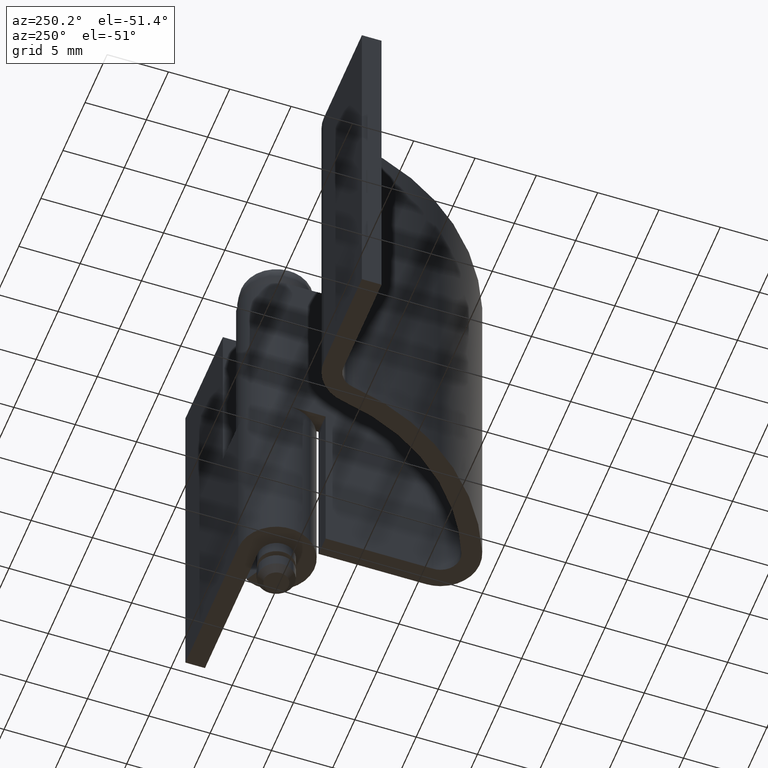
[diagram: clean part render]
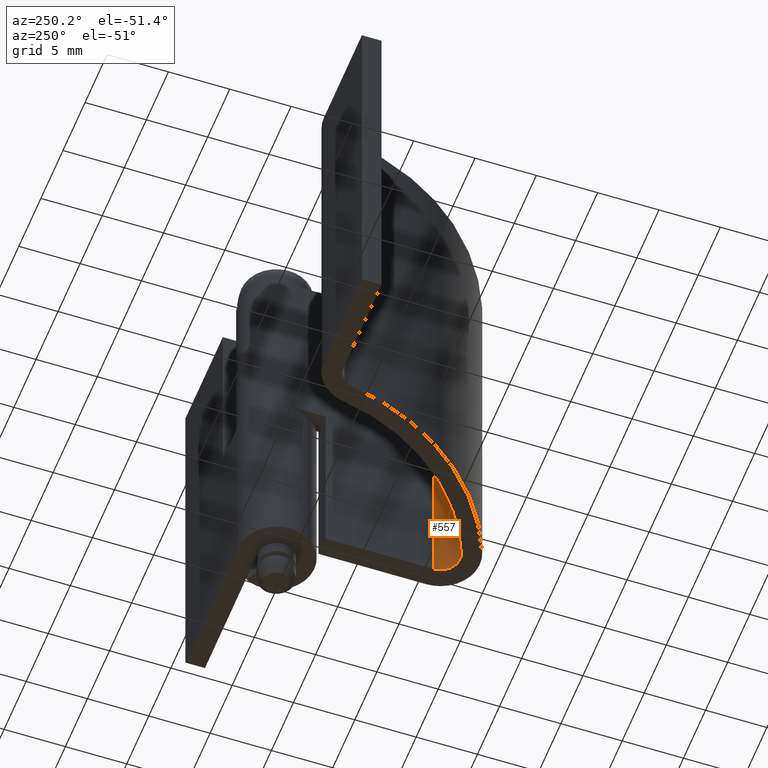
[diagram: same view with one face highlighted and labeled with its STEP entity id]
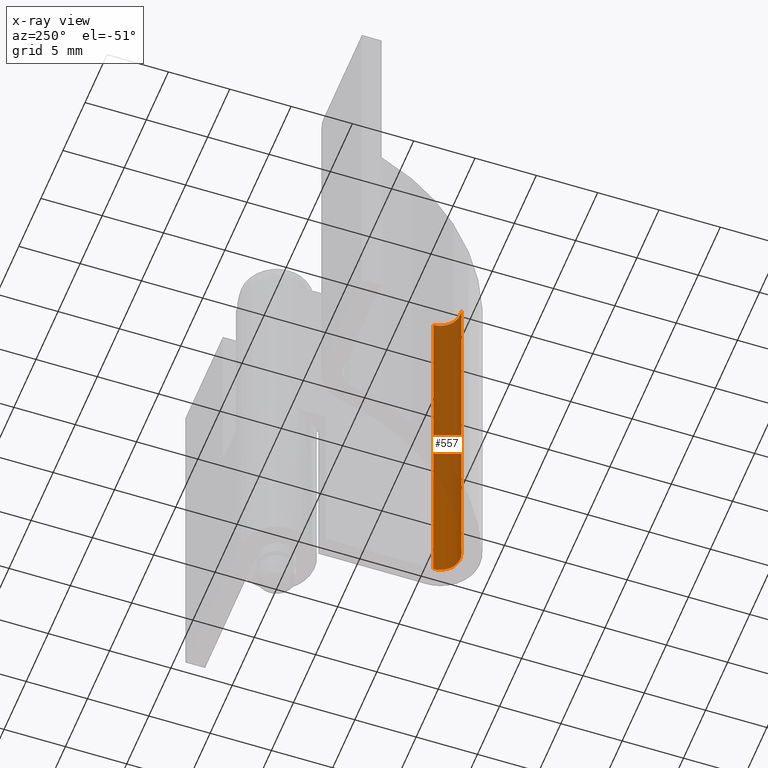
[diagram: x-ray of the same camera — body ghosted, the highlighted face saturated]
A machine part, auxiliary view. The second image highlights one B-rep face of the part: STEP entity #557.
The next image is the same camera in x-ray: the body ghosted, the highlighted face saturated — about 72% of this face is hidden behind the body in this view.
In plain terms, the highlighted face is a freeform B-spline surface patch.
Its self-contained STEP definition (entity closure, byte-faithful):
#253=CARTESIAN_POINT('',(-5.304818019828041,-13.181281369806520,3.0));
#254=VERTEX_POINT('',#253);
#268=CARTESIAN_POINT('',(-3.099998000000000,-11.700001000000000,3.0));
#269=VERTEX_POINT('',#268);
#270=CARTESIAN_POINT('',(-5.304818019828041,-13.181281369806520,3.0));
#271=CARTESIAN_POINT('',(-4.515460057916721,-13.503583889661240,3.000000000000000));
#272=CARTESIAN_POINT('',(-3.807728939454707,-13.028103712843560,3.0));
#273=CARTESIAN_POINT('',(-3.099997820992694,-12.552623536025877,3.000000000000000));
#274=CARTESIAN_POINT('',(-3.099998000000000,-11.700001000000000,3.0));
#282=(BOUNDED_CURVE()B_SPLINE_CURVE(2,(#270,#271,#272,#273,#274),.UNSPECIFIED.,.F.,.U.)B_SPLINE_CURVE_WITH_KNOTS((3,2,3),(0.0,0.500000000000000,1.0),.UNSPECIFIED.)CURVE()GEOMETRIC_REPRESENTATION_ITEM()RATIONAL_B_SPLINE_CURVE((1.0,0.882515679843935,1.0,0.882515679843935,1.0))REPRESENTATION_ITEM(''));
#283=EDGE_CURVE('',#254,#269,#282,.T.);
#424=CARTESIAN_POINT('',(-3.099998000000000,-11.700001000000000,33.000008000000037));
#425=VERTEX_POINT('',#424);
#431=CARTESIAN_POINT('',(-5.304818019828041,-13.181281369806520,33.000008000000037));
#432=VERTEX_POINT('',#431);
#433=CARTESIAN_POINT('',(-5.304818019828041,-13.181281369806520,33.000008000000037));
#434=CARTESIAN_POINT('',(-4.515460057916721,-13.503583889661240,33.000008000000044));
#435=CARTESIAN_POINT('',(-3.807728939454707,-13.028103712843560,33.000008000000037));
#436=CARTESIAN_POINT('',(-3.099997820992694,-12.552623536025877,33.000008000000044));
#437=CARTESIAN_POINT('',(-3.099998000000000,-11.700001000000000,33.000008000000037));
#445=(BOUNDED_CURVE()B_SPLINE_CURVE(2,(#433,#434,#435,#436,#437),.UNSPECIFIED.,.F.,.U.)B_SPLINE_CURVE_WITH_KNOTS((3,2,3),(0.0,0.500000000000000,1.0),.UNSPECIFIED.)CURVE()GEOMETRIC_REPRESENTATION_ITEM()RATIONAL_B_SPLINE_CURVE((1.0,0.882515679843935,1.0,0.882515679843935,1.0))REPRESENTATION_ITEM(''));
#446=EDGE_CURVE('',#432,#425,#445,.T.);
#525=CARTESIAN_POINT('',(-5.304818019828041,-13.181281369806520,33.000008000000037));
#526=CARTESIAN_POINT('',(-5.304818019828041,-13.181281369806520,3.0));
#527=QUASI_UNIFORM_CURVE('',1,(#525,#526),.UNSPECIFIED.,.F.,.U.);
#528=EDGE_CURVE('',#432,#254,#527,.T.);
#533=CARTESIAN_POINT('',(-5.363506188249982,-13.155939033402470,33.750008200000053));
#534=CARTESIAN_POINT('',(-5.363506188249982,-13.155939033402470,2.231249795000000));
#535=CARTESIAN_POINT('',(-2.891813884918453,-14.282354111628454,33.750008200000046));
#536=CARTESIAN_POINT('',(-2.891813884918453,-14.282354111628454,2.231249795000001));
#537=CARTESIAN_POINT('',(-3.104929266026995,-11.574466446835450,33.750008200000053));
#538=CARTESIAN_POINT('',(-3.104929266026995,-11.574466446835450,2.231249795000000));
#546=(BOUNDED_SURFACE()B_SPLINE_SURFACE(1,2,((#533,#535,#537),(#534,#536,#538)),.UNSPECIFIED.,.F.,.F.,.U.)B_SPLINE_SURFACE_WITH_KNOTS((2,2),(3,3),(0.0,31.518758405000060),(0.0,3.657901359137425),.UNSPECIFIED.)GEOMETRIC_REPRESENTATION_ITEM()RATIONAL_B_SPLINE_SURFACE(((1.0,0.507538362960704,1.0),(1.0,0.507538362960704,1.0)))REPRESENTATION_ITEM('')SURFACE());
#547=ORIENTED_EDGE('',*,*,#283,.F.);
#548=ORIENTED_EDGE('',*,*,#528,.F.);
#549=ORIENTED_EDGE('',*,*,#446,.T.);
#550=CARTESIAN_POINT('',(-3.099998000000000,-11.700001000000000,33.000008000000037));
#551=CARTESIAN_POINT('',(-3.099998000000000,-11.700001000000000,3.0));
#552=QUASI_UNIFORM_CURVE('',1,(#550,#551),.UNSPECIFIED.,.F.,.U.);
#553=EDGE_CURVE('',#425,#269,#552,.T.);
#554=ORIENTED_EDGE('',*,*,#553,.T.);
#555=EDGE_LOOP('',(#547,#548,#549,#554));
#556=FACE_OUTER_BOUND('',#555,.T.);
#557=ADVANCED_FACE('',(#556),#546,.F.);